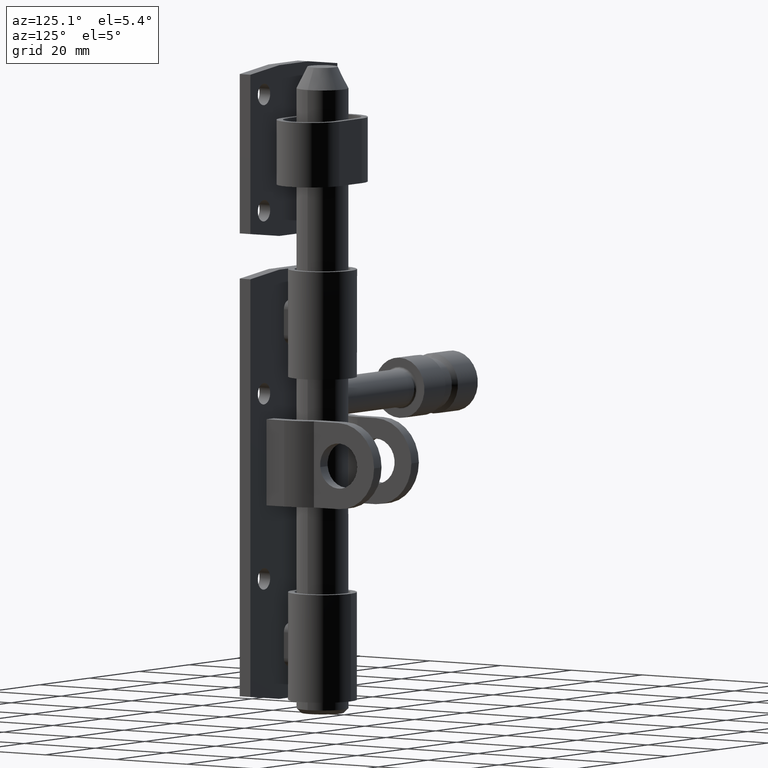
[diagram: clean part render]
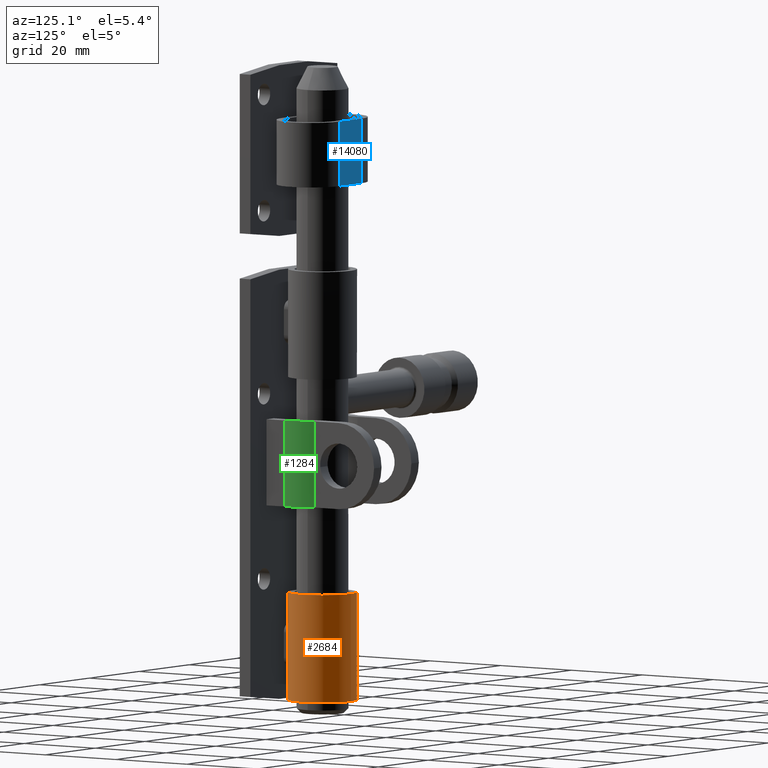
[diagram: same view with three faces highlighted in distinct colors, each labeled with its STEP entity id]
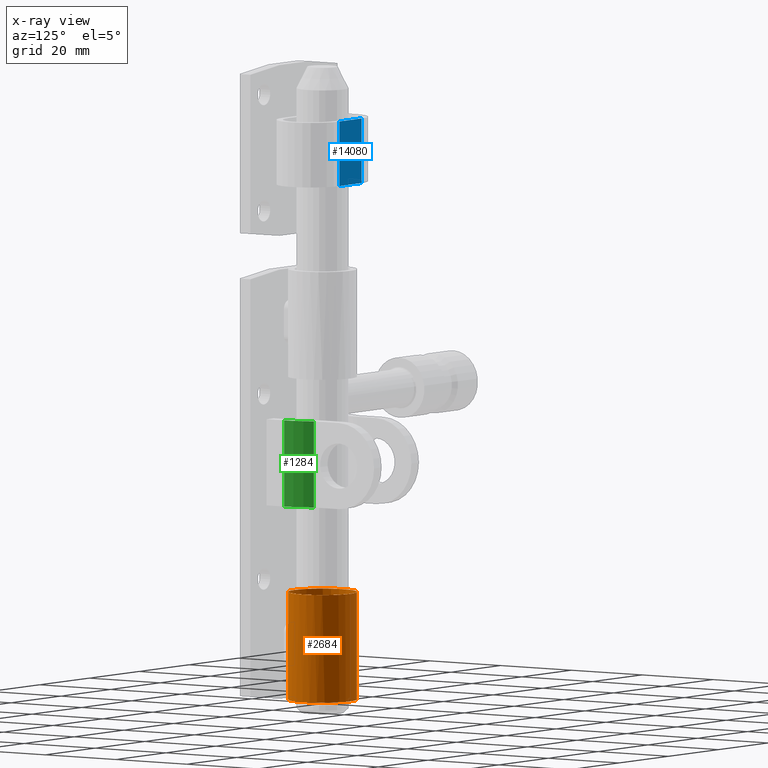
[diagram: x-ray of the same camera — body ghosted, the three highlighted faces saturated]
A machine part, auxiliary view with three faces highlighted in distinct colors.
The next image is the same camera in x-ray (body ghosted, the three faces saturated) — at least one of them is partly hidden behind the body in this view.
Their STEP definitions:

[orange] entity #2684 — the highlighted cylindrical surface (bore or boss wall) has radius 8 mm, axis along (-0, -0, -1).
#99 = FACE_BOUND ( 'NONE', #10539, .T. ) ;
#302 = VERTEX_POINT ( 'NONE', #2213 ) ;
#316 = CIRCLE ( 'NONE', #11432, 8.000000000000000000 ) ;
#376 = CARTESIAN_POINT ( 'NONE',  ( -3.999999999999999112, 1.171796769724489984, -34.50000000000000000 ) ) ;
#453 = CARTESIAN_POINT ( 'NONE',  ( 2.132787571037483065, 0.3883189109992663535, -32.50000000000000000 ) ) ;
#473 = FACE_OUTER_BOUND ( 'NONE', #13162, .T. ) ;
#486 = CARTESIAN_POINT ( 'NONE',  ( 4.000000000000000000, 1.171796769724489984, -40.49999999999999289 ) ) ;
#506 = CARTESIAN_POINT ( 'NONE',  ( 2.640705588109907520, 0.5473288363636563680, -32.60101504854395671 ) ) ;
#591 = CARTESIAN_POINT ( 'NONE',  ( 3.206192544386318399, 0.7696657760983902641, -42.10046968973777126 ) ) ;
#594 = CIRCLE ( 'NONE', #14473, 8.000000000000000000 ) ;
#669 = CARTESIAN_POINT ( 'NONE',  ( 4.000000000000000000, 1.171796769724489984, 50.00000000000000000 ) ) ;
#737 = CARTESIAN_POINT ( 'NONE',  ( -3.734440012357261640, 1.024119369373793775, -33.46947199844137799 ) ) ;
#919 = CARTESIAN_POINT ( 'NONE',  ( -2.992194004628229376, 0.6797408734971726041, -32.75874908784452089 ) ) ;
#927 = EDGE_CURVE ( 'NONE', #13074, #13074, #316, .T. ) ;
#994 = CARTESIAN_POINT ( 'NONE',  ( -1.999999999999999112, 0.3540333075851658240, -42.49999999999999289 ) ) ;
#1133 = CARTESIAN_POINT ( 'NONE',  ( -2.132787571037482621, 0.3883189109992663535, -42.49999999999999289 ) ) ;
#1427 = CARTESIAN_POINT ( 'NONE',  ( 2.262405595254725288, 0.4254218699077952914, -32.51308496934383641 ) ) ;
#1578 = CARTESIAN_POINT ( 'NONE',  ( 4.000000000000000000, 1.171796769724489984, -34.50000000000000000 ) ) ;
#1631 = CARTESIAN_POINT ( 'NONE',  ( 3.573954347031695900, 0.9422262583680671710, -33.25918612338704605 ) ) ;
#1707 = CARTESIAN_POINT ( 'NONE',  ( 3.986033116961417821, 1.163681633895160328, -40.77155093990069190 ) ) ;
#1858 = CARTESIAN_POINT ( 'NONE',  ( 2.132649590216821878, 0.3882832845045648962, -42.50000000000000711 ) ) ;
#2010 = CARTESIAN_POINT ( 'NONE',  ( -2.879476943906896125, 0.6351088891971979900, -32.69917080282911570 ) ) ;
#2042 = VECTOR ( 'NONE', #14675, 1000.000000000000000 ) ;
#2163 = EDGE_CURVE ( 'NONE', #9397, #302, #5373, .T. ) ;
#2213 = CARTESIAN_POINT ( 'NONE',  ( 4.000000000000000000, 1.171796769724489984, -34.50000000000000000 ) ) ;
#2275 = CARTESIAN_POINT ( 'NONE',  ( -3.999999999999999112, 1.171796769724489984, 50.00000000000000000 ) ) ;
#2359 = DIRECTION ( 'NONE',  ( -1.000000000000000000, 0.000000000000000000, 0.000000000000000000 ) ) ;
#2521 = CIRCLE ( 'NONE', #9261, 8.000000000000000000 ) ;
#2676 = CARTESIAN_POINT ( 'NONE',  ( 3.205837372916339412, 0.7695141435127301754, -32.89928383773604281 ) ) ;
#2684 = ADVANCED_FACE ( 'NONE', ( #13165, #473, #99 ), #8916, .T. ) ;
#2731 = CARTESIAN_POINT ( 'NONE',  ( 3.491063849130730645, 0.9011966928350739758, -33.16087570012604147 ) ) ;
#2807 = CARTESIAN_POINT ( 'NONE',  ( 3.931836053470453063, 1.132817087652544297, -41.03486158689900520 ) ) ;
#2931 = CARTESIAN_POINT ( 'NONE',  ( -1.999999999999999112, 0.3540333075851658240, -42.49999999999999289 ) ) ;
#2950 = CARTESIAN_POINT ( 'NONE',  ( 3.890870403152125512, 1.109673846517150730, -41.16496364419333531 ) ) ;
#3005 = CARTESIAN_POINT ( 'NONE',  ( -2.516680697326913130, 0.5049975780998859909, -32.56354994587252349 ) ) ;
#3126 = ORIENTED_EDGE ( 'NONE', *, *, #13546, .T. ) ;
#3258 = B_SPLINE_CURVE_WITH_KNOTS ( 'NONE', 3,
 ( #376, #9399, #3836, #8377, #12085, #737, #14351, #5248, #5353, #919, #2010, #6502, #3005, #10910, #12125, #13244 ),
 .UNSPECIFIED., .F., .F.,
 ( 4, 2, 2, 2, 2, 2, 2, 4 ),
 ( 0.000000000000000000, 0.0004052552676200997278, 0.0008105105352401994557, 0.001621021070480379396, 0.002026276338100463023, 0.002431531605720546000, 0.002836786873340628977, 0.003242042140960711954 ),
 .UNSPECIFIED. ) ;
#3325 = CARTESIAN_POINT ( 'NONE',  ( -2.262405595254724400, 0.4254218699077952914, -42.48691503065614938 ) ) ;
#3431 = CARTESIAN_POINT ( 'NONE',  ( -3.985670443235194593, 1.163470887433002199, -40.77464148206100703 ) ) ;
#3450 = B_SPLINE_CURVE_WITH_KNOTS ( 'NONE', 3,
 ( #486, #9500, #1707, #2807, #2950, #11883, #4078, #13098, #591, #9599, #5057, #7480, #7379, #6202, #1858, #9741 ),
 .UNSPECIFIED., .F., .F.,
 ( 4, 2, 2, 2, 2, 2, 2, 4 ),
 ( 0.000000000000000000, 0.0004052552676200995110, 0.0008105105352401990220, 0.001621021070480379179, 0.002026276338100462589, 0.002431531605720546000, 0.002836786873340628977, 0.003242042140960712387 ),
 .UNSPECIFIED. ) ;
#3836 = CARTESIAN_POINT ( 'NONE',  ( -3.986033116961417821, 1.163681633895160328, -34.22844906009932231 ) ) ;
#3839 = ORIENTED_EDGE ( 'NONE', *, *, #12993, .T. ) ;
#3882 = CARTESIAN_POINT ( 'NONE',  ( 0.000000000000000000, 16.10000000000000142, -24.99999999999999645 ) ) ;
#4078 = CARTESIAN_POINT ( 'NONE',  ( 3.582720688234871886, 0.9442184203694505840, -41.74938311457032114 ) ) ;
#4252 = DIRECTION ( 'NONE',  ( -1.000000000000000000, 0.000000000000000000, 0.000000000000000000 ) ) ;
#4348 = CARTESIAN_POINT ( 'NONE',  ( -3.491063849130729757, 0.9011966928350720885, -41.83912429987395853 ) ) ;
#4450 = CARTESIAN_POINT ( 'NONE',  ( -2.640705588109906632, 0.5473288363636562570, -42.39898495145603619 ) ) ;
#4541 = CARTESIAN_POINT ( 'NONE',  ( -3.721539310241695375, 1.017837916752532657, -41.52628152386555627 ) ) ;
#4726 = CIRCLE ( 'NONE', #12934, 8.000000000000000000 ) ;
#4768 = EDGE_LOOP ( 'NONE', ( #6231 ) ) ;
#4912 = DIRECTION ( 'NONE',  ( 0.000000000000000000, 1.000000000000000000, -4.336808689942017736E-16 ) ) ;
#4937 = VECTOR ( 'NONE', #13025, 1000.000000000000000 ) ;
#5017 = CARTESIAN_POINT ( 'NONE',  ( 3.985670443235195037, 1.163470887433001977, -34.22535851793900719 ) ) ;
#5057 = CARTESIAN_POINT ( 'NONE',  ( 2.879476943906894792, 0.6351088891971975459, -42.30082919717088430 ) ) ;
#5248 = CARTESIAN_POINT ( 'NONE',  ( -3.307448130364823768, 0.8150112387686040405, -32.98109574943298838 ) ) ;
#5353 = CARTESIAN_POINT ( 'NONE',  ( -3.206192544386317067, 0.7696657760983902641, -32.89953031026222163 ) ) ;
#5373 = B_SPLINE_CURVE_WITH_KNOTS ( 'NONE', 3,
 ( #7307, #453, #1427, #11801, #506, #9425, #12866, #2676, #8395, #2731, #1631, #6072, #9369, #9520, #11593, #5017, #8349, #1578 ),
 .UNSPECIFIED., .F., .F.,
 ( 4, 2, 2, 2, 2, 2, 2, 2, 4 ),
 ( 0.000000000000000000, 0.0004053024212613519361, 0.0008106048425227038723, 0.001215907263784055808, 0.001621209685045407745, 0.002026512106306759681, 0.002431814527568111617, 0.002837116948829463987, 0.003242419370090816790 ),
 .UNSPECIFIED. ) ;
#5502 = CARTESIAN_POINT ( 'NONE',  ( 0.000000000000000000, 8.099999999999999645, -42.49999999999999289 ) ) ;
#5553 = VERTEX_POINT ( 'NONE', #9147 ) ;
#5668 = CARTESIAN_POINT ( 'NONE',  ( -3.999999999999999112, 1.171796769724489984, -40.49999999999999289 ) ) ;
#5901 = CARTESIAN_POINT ( 'NONE',  ( 8.000000000000000000, 8.099999999999999645, -50.00000000000000000 ) ) ;
#6005 = VERTEX_POINT ( 'NONE', #3882 ) ;
#6072 = CARTESIAN_POINT ( 'NONE',  ( 3.721539310241697152, 1.017837916752532434, -33.47371847613445794 ) ) ;
#6202 = CARTESIAN_POINT ( 'NONE',  ( 2.262433013322839415, 0.4254224623635850522, -42.48693901985915744 ) ) ;
#6231 = ORIENTED_EDGE ( 'NONE', *, *, #11579, .T. ) ;
#6502 = CARTESIAN_POINT ( 'NONE',  ( -2.642134740065425369, 0.5478406543576231913, -32.60154576882980848 ) ) ;
#6612 = DIRECTION ( 'NONE',  ( 1.000000000000000000, 0.000000000000000000, 0.000000000000000000 ) ) ;
#6632 = CARTESIAN_POINT ( 'NONE',  ( -3.890365148396873085, 1.109393997113946817, -41.16630016349736110 ) ) ;
#6654 = DIRECTION ( 'NONE',  ( -0.000000000000000000, -0.000000000000000000, 1.000000000000000000 ) ) ;
#6783 = CARTESIAN_POINT ( 'NONE',  ( -4.000000000000000888, 1.171796769724490428, -40.63742674210368477 ) ) ;
#7307 = CARTESIAN_POINT ( 'NONE',  ( 2.000000000000000000, 0.3540333075851658240, -32.50000000000000000 ) ) ;
#7313 = ORIENTED_EDGE ( 'NONE', *, *, #7803, .T. ) ;
#7379 = CARTESIAN_POINT ( 'NONE',  ( 2.516680697326914018, 0.5049975780998858799, -42.43645005412748361 ) ) ;
#7480 = CARTESIAN_POINT ( 'NONE',  ( 2.642134740065424037, 0.5478406543576224141, -42.39845423117020573 ) ) ;
#7522 = LINE ( 'NONE', #2275, #2042 ) ;
#7803 = EDGE_CURVE ( 'NONE', #302, #11517, #11322, .T. ) ;
#7885 = DIRECTION ( 'NONE',  ( 0.000000000000000000, 0.000000000000000000, 1.000000000000000000 ) ) ;
#7898 = CARTESIAN_POINT ( 'NONE',  ( 2.000000000000000000, 0.3540333075851658240, -42.49999999999999289 ) ) ;
#7928 = CARTESIAN_POINT ( 'NONE',  ( 0.000000000000000000, 8.099999999999999645, -32.50000000000000000 ) ) ;
#8349 = CARTESIAN_POINT ( 'NONE',  ( 4.000000000000000888, 1.171796769724490206, -34.36257325789632944 ) ) ;
#8377 = CARTESIAN_POINT ( 'NONE',  ( -3.931836053470451287, 1.132817087652544519, -33.96513841310098059 ) ) ;
#8395 = CARTESIAN_POINT ( 'NONE',  ( 3.307357247797833466, 0.8149685045708079389, -32.98100614901575511 ) ) ;
#8497 = CARTESIAN_POINT ( 'NONE',  ( -3.999999999999999112, 1.171796769724489984, -40.49999999999999289 ) ) ;
#8883 = AXIS2_PLACEMENT_3D ( 'NONE', #10992, #12106, #4252 ) ;
#8916 = CYLINDRICAL_SURFACE ( 'NONE', #8883, 8.000000000000000000 ) ;
#8972 = CARTESIAN_POINT ( 'NONE',  ( 2.000000000000000000, 0.3540333075851658240, -32.50000000000000000 ) ) ;
#9147 = CARTESIAN_POINT ( 'NONE',  ( -3.999999999999999112, 1.171796769724489984, -34.50000000000000000 ) ) ;
#9261 = AXIS2_PLACEMENT_3D ( 'NONE', #7928, #6654, #2359 ) ;
#9262 = CARTESIAN_POINT ( 'NONE',  ( 4.000000000000000000, 1.171796769724489984, -40.49999999999999289 ) ) ;
#9369 = CARTESIAN_POINT ( 'NONE',  ( 3.786355380819491856, 1.052516321013094336, -33.59095063084154020 ) ) ;
#9397 = VERTEX_POINT ( 'NONE', #8972 ) ;
#9399 = CARTESIAN_POINT ( 'NONE',  ( -3.999999999999999112, 1.171796769724489984, -34.36278455638100837 ) ) ;
#9425 = CARTESIAN_POINT ( 'NONE',  ( 2.879395987587924033, 0.6350655424336498767, -32.69908073653868286 ) ) ;
#9500 = CARTESIAN_POINT ( 'NONE',  ( 4.000000000000000000, 1.171796769724490206, -40.63721544361899873 ) ) ;
#9520 = CARTESIAN_POINT ( 'NONE',  ( 3.890365148396874861, 1.109393997113948371, -33.83369983650264601 ) ) ;
#9599 = CARTESIAN_POINT ( 'NONE',  ( 2.992194004628230708, 0.6797408734971729372, -42.24125091215548622 ) ) ;
#9664 = EDGE_CURVE ( 'NONE', #10175, #14320, #4726, .T. ) ;
#9741 = CARTESIAN_POINT ( 'NONE',  ( 2.000000000000000000, 0.3540333075851658240, -42.49999999999999289 ) ) ;
#9795 = EDGE_CURVE ( 'NONE', #5553, #14022, #3258, .T. ) ;
#9958 = CARTESIAN_POINT ( 'NONE',  ( -3.205837372916337635, 0.7695141435127301754, -42.10071616226392877 ) ) ;
#10007 = CARTESIAN_POINT ( 'NONE',  ( -2.515832791697634185, 0.5047242369649058702, -42.43664776520608228 ) ) ;
#10055 = CARTESIAN_POINT ( 'NONE',  ( -3.930570813800700058, 1.132100884106727490, -41.03964005198597675 ) ) ;
#10150 = CARTESIAN_POINT ( 'NONE',  ( -3.307357247797833466, 0.8149685045708061626, -42.01899385098424489 ) ) ;
#10164 = ORIENTED_EDGE ( 'NONE', *, *, #9795, .T. ) ;
#10175 = VERTEX_POINT ( 'NONE', #7898 ) ;
#10189 = CARTESIAN_POINT ( 'NONE',  ( 0.000000000000000000, 8.099999999999999645, -50.00000000000000000 ) ) ;
#10241 = DIRECTION ( 'NONE',  ( 1.000000000000000000, 0.000000000000000000, 0.000000000000000000 ) ) ;
#10539 = EDGE_LOOP ( 'NONE', ( #12246, #10164, #3126, #14609, #7313, #12566, #13355, #3839 ) ) ;
#10636 = DIRECTION ( 'NONE',  ( -0.000000000000000000, -2.775557561562890365E-16, -1.000000000000000000 ) ) ;
#10910 = CARTESIAN_POINT ( 'NONE',  ( -2.262433013322838082, 0.4254224623635850522, -32.51306098014084256 ) ) ;
#10992 = CARTESIAN_POINT ( 'NONE',  ( 0.000000000000000000, 8.099999999999999645, 50.00000000000000000 ) ) ;
#11071 = DIRECTION ( 'NONE',  ( -0.000000000000000000, -0.000000000000000000, -1.000000000000000000 ) ) ;
#11281 = CARTESIAN_POINT ( 'NONE',  ( -2.992268978239925215, 0.6797747665175271070, -42.24118875394871964 ) ) ;
#11322 = LINE ( 'NONE', #669, #4937 ) ;
#11432 = AXIS2_PLACEMENT_3D ( 'NONE', #10189, #7885, #10241 ) ;
#11517 = VERTEX_POINT ( 'NONE', #9262 ) ;
#11579 = EDGE_CURVE ( 'NONE', #6005, #6005, #594, .T. ) ;
#11593 = CARTESIAN_POINT ( 'NONE',  ( 3.930570813800700058, 1.132100884106727490, -33.96035994801402325 ) ) ;
#11796 = CARTESIAN_POINT ( 'NONE',  ( 0.000000000000000000, 8.099999999999999645, -24.99999999999999289 ) ) ;
#11801 = CARTESIAN_POINT ( 'NONE',  ( 2.515832791697634185, 0.5047242369649057592, -32.56335223479389640 ) ) ;
#11883 = CARTESIAN_POINT ( 'NONE',  ( 3.734440012357260752, 1.024119369373794219, -41.53052800155862911 ) ) ;
#12038 = B_SPLINE_CURVE_WITH_KNOTS ( 'NONE', 3,
 ( #994, #1133, #3325, #10007, #4450, #13508, #11281, #9958, #10150, #4348, #12341, #4541, #12435, #6632, #10055, #3431, #6783, #5668 ),
 .UNSPECIFIED., .F., .F.,
 ( 4, 2, 2, 2, 2, 2, 2, 2, 4 ),
 ( 0.000000000000000000, 0.0004053024212613518277, 0.0008106048425227036554, 0.001215907263784055375, 0.001621209685045407311, 0.002026512106306759247, 0.002431814527568110750, 0.002837116948829463119, 0.003242419370090815923 ),
 .UNSPECIFIED. ) ;
#12085 = CARTESIAN_POINT ( 'NONE',  ( -3.890870403152124180, 1.109673846517150064, -33.83503635580666469 ) ) ;
#12106 = DIRECTION ( 'NONE',  ( -0.000000000000000000, -0.000000000000000000, -1.000000000000000000 ) ) ;
#12125 = CARTESIAN_POINT ( 'NONE',  ( -2.132649590216820101, 0.3882832845045648962, -32.50000000000000000 ) ) ;
#12246 = ORIENTED_EDGE ( 'NONE', *, *, #12968, .T. ) ;
#12341 = CARTESIAN_POINT ( 'NONE',  ( -3.573954347031695011, 0.9422262583680669490, -41.74081387661295395 ) ) ;
#12435 = CARTESIAN_POINT ( 'NONE',  ( -3.786355380819491412, 1.052516321013092337, -41.40904936915846690 ) ) ;
#12566 = ORIENTED_EDGE ( 'NONE', *, *, #13934, .T. ) ;
#12866 = CARTESIAN_POINT ( 'NONE',  ( 2.992268978239926103, 0.6797747665175271070, -32.75881124605126615 ) ) ;
#12934 = AXIS2_PLACEMENT_3D ( 'NONE', #5502, #11071, #6612 ) ;
#12968 = EDGE_CURVE ( 'NONE', #13311, #5553, #7522, .T. ) ;
#12993 = EDGE_CURVE ( 'NONE', #14320, #13311, #12038, .T. ) ;
#13025 = DIRECTION ( 'NONE',  ( -0.000000000000000000, -0.000000000000000000, -1.000000000000000000 ) ) ;
#13074 = VERTEX_POINT ( 'NONE', #5901 ) ;
#13098 = CARTESIAN_POINT ( 'NONE',  ( 3.307448130364825545, 0.8150112387686041515, -42.01890425056700451 ) ) ;
#13162 = EDGE_LOOP ( 'NONE', ( #13303 ) ) ;
#13165 = FACE_OUTER_BOUND ( 'NONE', #4768, .T. ) ;
#13244 = CARTESIAN_POINT ( 'NONE',  ( -1.999999999999999112, 0.3540333075851658240, -32.50000000000000000 ) ) ;
#13303 = ORIENTED_EDGE ( 'NONE', *, *, #927, .T. ) ;
#13311 = VERTEX_POINT ( 'NONE', #8497 ) ;
#13355 = ORIENTED_EDGE ( 'NONE', *, *, #9664, .T. ) ;
#13508 = CARTESIAN_POINT ( 'NONE',  ( -2.879395987587923145, 0.6350655424336498767, -42.30091926346128872 ) ) ;
#13546 = EDGE_CURVE ( 'NONE', #14022, #9397, #2521, .T. ) ;
#13934 = EDGE_CURVE ( 'NONE', #11517, #10175, #3450, .T. ) ;
#14022 = VERTEX_POINT ( 'NONE', #14293 ) ;
#14293 = CARTESIAN_POINT ( 'NONE',  ( -1.999999999999999112, 0.3540333075851658240, -32.50000000000000000 ) ) ;
#14320 = VERTEX_POINT ( 'NONE', #2931 ) ;
#14351 = CARTESIAN_POINT ( 'NONE',  ( -3.582720688234870998, 0.9442184203694508060, -33.25061688542967175 ) ) ;
#14473 = AXIS2_PLACEMENT_3D ( 'NONE', #11796, #10636, #4912 ) ;
#14609 = ORIENTED_EDGE ( 'NONE', *, *, #2163, .T. ) ;
#14675 = DIRECTION ( 'NONE',  ( 0.000000000000000000, 0.000000000000000000, 1.000000000000000000 ) ) ;

[blue] entity #14080 — the highlighted planar face has unit normal (0, -1, 0).
#224 = DIRECTION ( 'NONE',  ( -0.000000000000000000, -0.000000000000000000, -1.000000000000000000 ) ) ;
#625 = DIRECTION ( 'NONE',  ( 0.000000000000000000, -0.000000000000000000, -1.000000000000000000 ) ) ;
#639 = EDGE_CURVE ( 'NONE', #13310, #12913, #1930, .T. ) ;
#874 = VECTOR ( 'NONE', #13255, 1000.000000000000000 ) ;
#900 = CARTESIAN_POINT ( 'NONE',  ( 4.500000000000000888, 19.00000000000000355, 7.500000000000000000 ) ) ;
#1730 = CARTESIAN_POINT ( 'NONE',  ( -4.500000000000000888, 19.00000000000000355, 7.500000000000000000 ) ) ;
#1930 = LINE ( 'NONE', #10468, #4562 ) ;
#2241 = VERTEX_POINT ( 'NONE', #9656 ) ;
#2400 = VECTOR ( 'NONE', #3746, 1000.000000000000000 ) ;
#2575 = CARTESIAN_POINT ( 'NONE',  ( 4.500000000000000888, 19.00000000000000355, 7.500000000000000000 ) ) ;
#3282 = DIRECTION ( 'NONE',  ( -0.000000000000000000, -0.000000000000000000, -1.000000000000000000 ) ) ;
#3490 = EDGE_CURVE ( 'NONE', #2241, #12913, #14588, .T. ) ;
#3746 = DIRECTION ( 'NONE',  ( -1.000000000000000000, -0.000000000000000000, -0.000000000000000000 ) ) ;
#3849 = VERTEX_POINT ( 'NONE', #2575 ) ;
#3887 = CARTESIAN_POINT ( 'NONE',  ( -4.500000000000000888, 19.00000000000000355, -7.500000000000000000 ) ) ;
#4374 = ORIENTED_EDGE ( 'NONE', *, *, #12489, .T. ) ;
#4562 = VECTOR ( 'NONE', #224, 1000.000000000000000 ) ;
#5189 = DIRECTION ( 'NONE',  ( 0.000000000000000000, -1.000000000000000000, 0.000000000000000000 ) ) ;
#6410 = ORIENTED_EDGE ( 'NONE', *, *, #3490, .T. ) ;
#6908 = ORIENTED_EDGE ( 'NONE', *, *, #9604, .F. ) ;
#7101 = EDGE_LOOP ( 'NONE', ( #6410, #11277, #6908, #4374 ) ) ;
#7864 = AXIS2_PLACEMENT_3D ( 'NONE', #9544, #5189, #625 ) ;
#8297 = LINE ( 'NONE', #900, #12703 ) ;
#8574 = PLANE ( 'NONE',  #7864 ) ;
#8844 = FACE_OUTER_BOUND ( 'NONE', #7101, .T. ) ;
#9544 = CARTESIAN_POINT ( 'NONE',  ( -4.500000000000000888, 19.00000000000000355, 7.500000000000000000 ) ) ;
#9604 = EDGE_CURVE ( 'NONE', #3849, #13310, #12864, .T. ) ;
#9656 = CARTESIAN_POINT ( 'NONE',  ( 4.500000000000000888, 19.00000000000000355, -7.500000000000000000 ) ) ;
#9700 = CARTESIAN_POINT ( 'NONE',  ( -4.500000000000000888, 19.00000000000000355, 7.500000000000000000 ) ) ;
#9916 = CARTESIAN_POINT ( 'NONE',  ( -4.500000000000000888, 19.00000000000000355, -7.500000000000000000 ) ) ;
#10468 = CARTESIAN_POINT ( 'NONE',  ( -4.500000000000000888, 19.00000000000000355, 7.500000000000000000 ) ) ;
#11277 = ORIENTED_EDGE ( 'NONE', *, *, #639, .F. ) ;
#12489 = EDGE_CURVE ( 'NONE', #3849, #2241, #8297, .T. ) ;
#12703 = VECTOR ( 'NONE', #3282, 1000.000000000000000 ) ;
#12864 = LINE ( 'NONE', #9700, #874 ) ;
#12913 = VERTEX_POINT ( 'NONE', #9916 ) ;
#13255 = DIRECTION ( 'NONE',  ( -1.000000000000000000, -0.000000000000000000, -0.000000000000000000 ) ) ;
#13310 = VERTEX_POINT ( 'NONE', #1730 ) ;
#14080 = ADVANCED_FACE ( 'NONE', ( #8844 ), #8574, .F. ) ;
#14588 = LINE ( 'NONE', #3887, #2400 ) ;

[green] entity #1284 — the highlighted cylindrical surface (partial cylindrical patch) has radius 13.25 mm, axis along (0, -0, 1).
#120 = EDGE_CURVE ( 'NONE', #2512, #12100, #13419, .T. ) ;
#312 = DIRECTION ( 'NONE',  ( -0.000000000000000000, -1.387778780781445676E-16, 1.000000000000000000 ) ) ;
#363 = EDGE_CURVE ( 'NONE', #2512, #6746, #12859, .T. ) ;
#1284 = ADVANCED_FACE ( 'NONE', ( #14275 ), #8949, .T. ) ;
#1444 = EDGE_LOOP ( 'NONE', ( #6543, #12632, #3827, #10093 ) ) ;
#2363 = CARTESIAN_POINT ( 'NONE',  ( 11.00000000000000000, 5.000000000000000888, -4.499999999999999112 ) ) ;
#2512 = VERTEX_POINT ( 'NONE', #2363 ) ;
#2781 = CIRCLE ( 'NONE', #8324, 13.24999999999999112 ) ;
#3827 = ORIENTED_EDGE ( 'NONE', *, *, #120, .T. ) ;
#3832 = EDGE_CURVE ( 'NONE', #12100, #13257, #14238, .T. ) ;
#3905 = CARTESIAN_POINT ( 'NONE',  ( 9.000000000000001776, 11.99999999999999645, -4.499999999999997335 ) ) ;
#4835 = DIRECTION ( 'NONE',  ( 0.000000000000000000, 1.000000000000000000, 1.309225264888157116E-16 ) ) ;
#4889 = AXIS2_PLACEMENT_3D ( 'NONE', #13940, #7178, #12656 ) ;
#5720 = CARTESIAN_POINT ( 'NONE',  ( 11.00000000000000000, 4.999999999999998224, 15.50000000000000178 ) ) ;
#6543 = ORIENTED_EDGE ( 'NONE', *, *, #11188, .F. ) ;
#6746 = VERTEX_POINT ( 'NONE', #5720 ) ;
#7178 = DIRECTION ( 'NONE',  ( -0.000000000000000000, -1.387778780781445676E-16, 1.000000000000000000 ) ) ;
#7309 = CARTESIAN_POINT ( 'NONE',  ( 9.000000000000001776, 11.99999999999999289, 15.50000000000000355 ) ) ;
#7543 = CARTESIAN_POINT ( 'NONE',  ( -2.249999999999991562, 5.000000000000000888, -4.499999999999999112 ) ) ;
#8324 = AXIS2_PLACEMENT_3D ( 'NONE', #11669, #312, #4835 ) ;
#8949 = CYLINDRICAL_SURFACE ( 'NONE', #4889, 13.24999999999999112 ) ;
#9452 = CARTESIAN_POINT ( 'NONE',  ( 11.00000000000000000, 5.000000000000000888, -4.499999999999999112 ) ) ;
#10093 = ORIENTED_EDGE ( 'NONE', *, *, #3832, .T. ) ;
#10790 = DIRECTION ( 'NONE',  ( -0.000000000000000000, -1.387778780781445676E-16, 1.000000000000000000 ) ) ;
#10865 = DIRECTION ( 'NONE',  ( -0.000000000000000000, -1.387778780781445676E-16, 1.000000000000000000 ) ) ;
#11023 = VECTOR ( 'NONE', #12727, 1000.000000000000000 ) ;
#11188 = EDGE_CURVE ( 'NONE', #6746, #13257, #2781, .T. ) ;
#11669 = CARTESIAN_POINT ( 'NONE',  ( -2.249999999999991562, 4.999999999999998224, 15.50000000000000178 ) ) ;
#11810 = AXIS2_PLACEMENT_3D ( 'NONE', #7543, #10790, #13009 ) ;
#12100 = VERTEX_POINT ( 'NONE', #12397 ) ;
#12166 = VECTOR ( 'NONE', #10865, 1000.000000000000000 ) ;
#12397 = CARTESIAN_POINT ( 'NONE',  ( 9.000000000000001776, 11.99999999999999645, -4.499999999999997335 ) ) ;
#12632 = ORIENTED_EDGE ( 'NONE', *, *, #363, .F. ) ;
#12656 = DIRECTION ( 'NONE',  ( 0.000000000000000000, -1.000000000000000000, -1.309225264888157116E-16 ) ) ;
#12727 = DIRECTION ( 'NONE',  ( -0.000000000000000000, -1.387778780781445676E-16, 1.000000000000000000 ) ) ;
#12859 = LINE ( 'NONE', #9452, #12166 ) ;
#13009 = DIRECTION ( 'NONE',  ( 0.000000000000000000, 1.000000000000000000, 1.309225264888157116E-16 ) ) ;
#13257 = VERTEX_POINT ( 'NONE', #7309 ) ;
#13419 = CIRCLE ( 'NONE', #11810, 13.24999999999999112 ) ;
#13940 = CARTESIAN_POINT ( 'NONE',  ( -2.249999999999991562, 5.000000000000000888, -4.499999999999999112 ) ) ;
#14238 = LINE ( 'NONE', #3905, #11023 ) ;
#14275 = FACE_OUTER_BOUND ( 'NONE', #1444, .T. ) ;